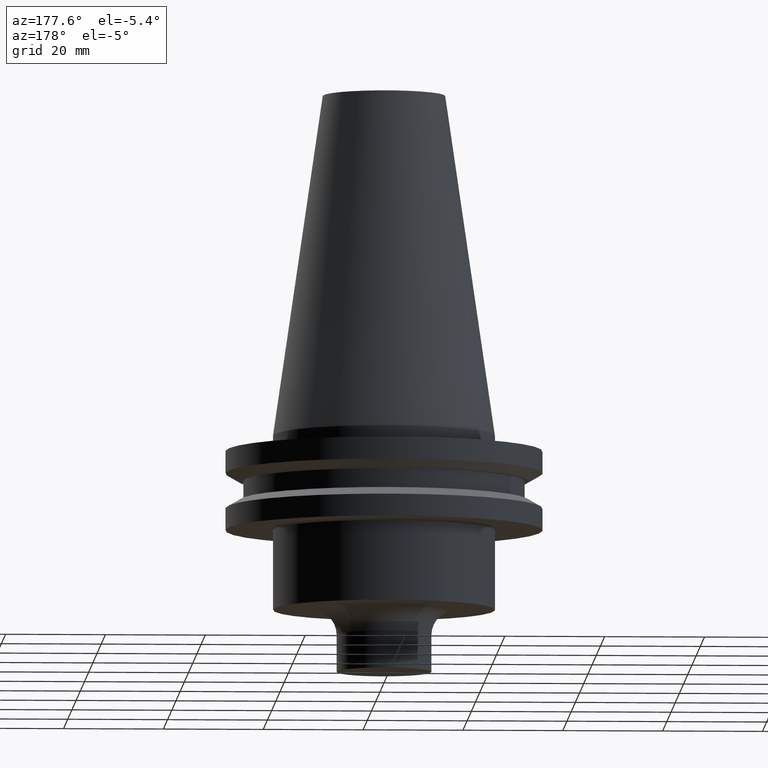
[diagram: clean part render]
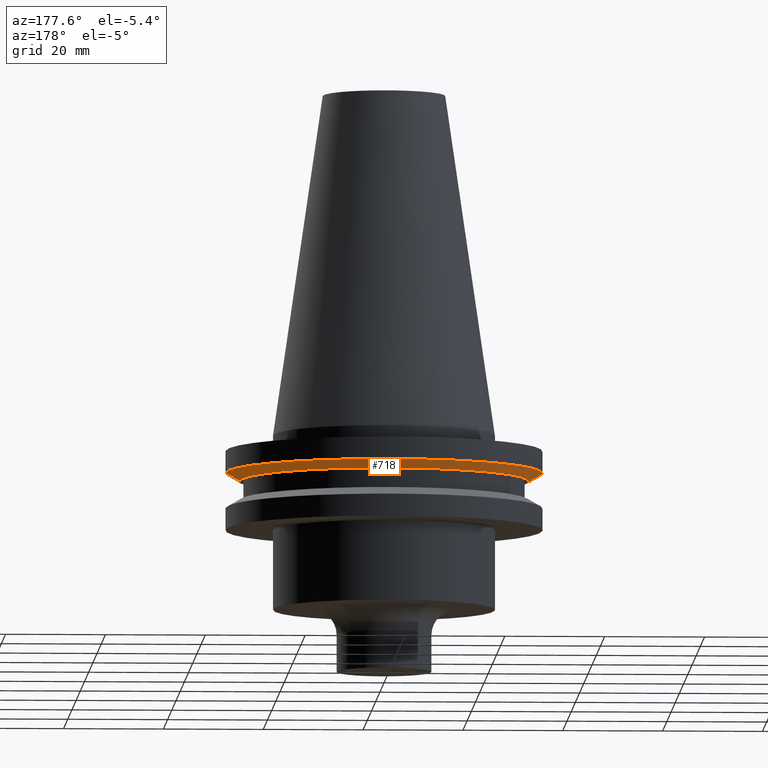
[diagram: same view with one face highlighted and labeled with its STEP entity id]
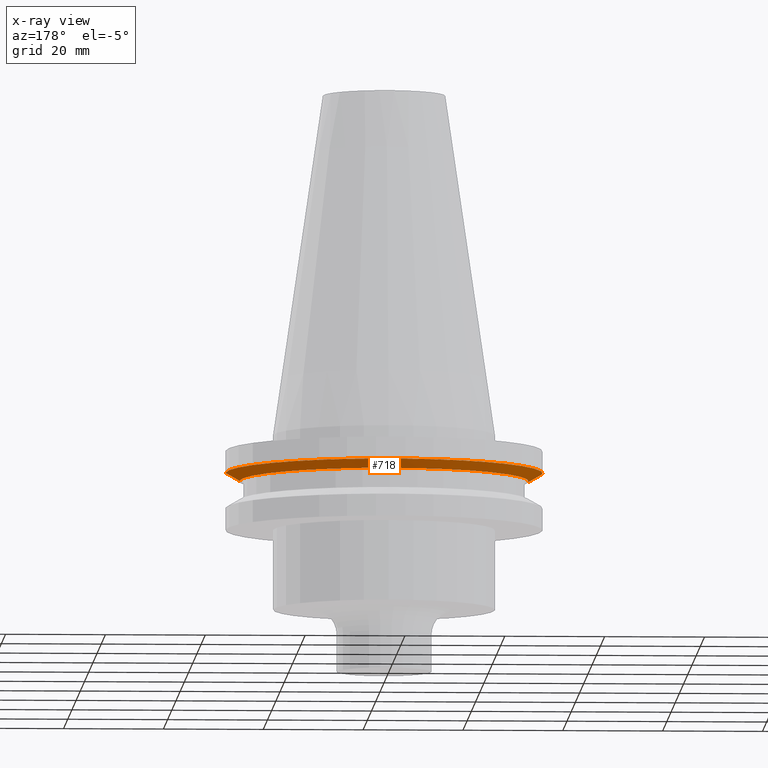
[diagram: x-ray of the same camera — body ghosted, the highlighted face saturated]
A machine part, auxiliary view. The second image highlights one B-rep face of the part: STEP entity #718.
The next image is the same camera in x-ray: the body ghosted, the highlighted face saturated — about 0% of this face is hidden behind the body in this view.
In plain terms, the highlighted conical surface has half-angle 60 deg.
Its self-contained STEP definition (entity closure, byte-faithful):
#7 = CARTESIAN_POINT ( 'NONE',  ( 31.75000000000000000, 0.000000000000000000, -7.605276606597335842 ) ) ;
#10 = EDGE_CURVE ( 'NONE', #628, #239, #735, .T. ) ;
#17 = CARTESIAN_POINT ( 'NONE',  ( -31.75000000000000000, 3.888253587292846476E-15, -7.605276606597335842 ) ) ;
#25 = CARTESIAN_POINT ( 'NONE',  ( 28.97919780457007732, 0.000000000000000000, -9.205000000000005400 ) ) ;
#49 = CARTESIAN_POINT ( 'NONE',  ( 0.000000000000000000, 0.000000000000000000, -7.605276606597335842 ) ) ;
#50 = VERTEX_POINT ( 'NONE', #692 ) ;
#79 = DIRECTION ( 'NONE',  ( 0.8660254037844389297, 0.000000000000000000, 0.4999999999999995004 ) ) ;
#86 = DIRECTION ( 'NONE',  ( 1.000000000000000000, 0.000000000000000000, 0.000000000000000000 ) ) ;
#101 = ORIENTED_EDGE ( 'NONE', *, *, #246, .T. ) ;
#163 = EDGE_CURVE ( 'NONE', #50, #628, #671, .T. ) ;
#239 = VERTEX_POINT ( 'NONE', #17 ) ;
#246 = EDGE_CURVE ( 'NONE', #50, #545, #437, .T. ) ;
#253 = EDGE_CURVE ( 'NONE', #545, #239, #624, .T. ) ;
#256 = CONICAL_SURFACE ( 'NONE', #609, 28.97919780457007732, 1.047197551196598297 ) ;
#271 = ORIENTED_EDGE ( 'NONE', *, *, #163, .F. ) ;
#279 = DIRECTION ( 'NONE',  ( -0.000000000000000000, -0.000000000000000000, 1.000000000000000000 ) ) ;
#305 = VECTOR ( 'NONE', #673, 1000.000000000000000 ) ;
#314 = DIRECTION ( 'NONE',  ( 1.000000000000000000, 0.000000000000000000, 0.000000000000000000 ) ) ;
#341 = FACE_OUTER_BOUND ( 'NONE', #470, .T. ) ;
#423 = ORIENTED_EDGE ( 'NONE', *, *, #253, .T. ) ;
#433 = CARTESIAN_POINT ( 'NONE',  ( -28.97919780457007732, 3.548928183322474856E-15, -9.205000000000005400 ) ) ;
#437 = CIRCLE ( 'NONE', #617, 28.97919780457007732 ) ;
#438 = DIRECTION ( 'NONE',  ( -0.000000000000000000, -0.000000000000000000, 1.000000000000000000 ) ) ;
#470 = EDGE_LOOP ( 'NONE', ( #101, #423, #593, #271 ) ) ;
#496 = CARTESIAN_POINT ( 'NONE',  ( 0.000000000000000000, 0.000000000000000000, -9.205000000000005400 ) ) ;
#531 = DIRECTION ( 'NONE',  ( 1.000000000000000000, 0.000000000000000000, 0.000000000000000000 ) ) ;
#532 = DIRECTION ( 'NONE',  ( -0.000000000000000000, -0.000000000000000000, 1.000000000000000000 ) ) ;
#545 = VERTEX_POINT ( 'NONE', #566 ) ;
#566 = CARTESIAN_POINT ( 'NONE',  ( -28.97919780457007732, 3.718590885307660666E-15, -9.205000000000005400 ) ) ;
#584 = CARTESIAN_POINT ( 'NONE',  ( 0.000000000000000000, 0.000000000000000000, -9.205000000000005400 ) ) ;
#593 = ORIENTED_EDGE ( 'NONE', *, *, #10, .F. ) ;
#609 = AXIS2_PLACEMENT_3D ( 'NONE', #584, #279, #86 ) ;
#617 = AXIS2_PLACEMENT_3D ( 'NONE', #496, #438, #314 ) ;
#622 = VECTOR ( 'NONE', #79, 1000.000000000000000 ) ;
#624 = LINE ( 'NONE', #433, #305 ) ;
#628 = VERTEX_POINT ( 'NONE', #7 ) ;
#671 = LINE ( 'NONE', #25, #622 ) ;
#673 = DIRECTION ( 'NONE',  ( -0.8660254037844389297, 1.060575238724907285E-16, 0.4999999999999995004 ) ) ;
#692 = CARTESIAN_POINT ( 'NONE',  ( 28.97919780457007732, 0.000000000000000000, -9.205000000000005400 ) ) ;
#718 = ADVANCED_FACE ( 'NONE', ( #341 ), #256, .T. ) ;
#735 = CIRCLE ( 'NONE', #749, 31.75000000000000000 ) ;
#749 = AXIS2_PLACEMENT_3D ( 'NONE', #49, #532, #531 ) ;